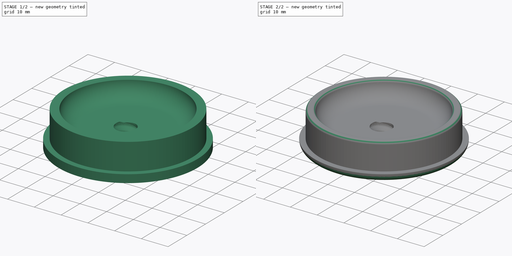
[diagram: build sequence overview — one tinted view per stage of 2, left to right]
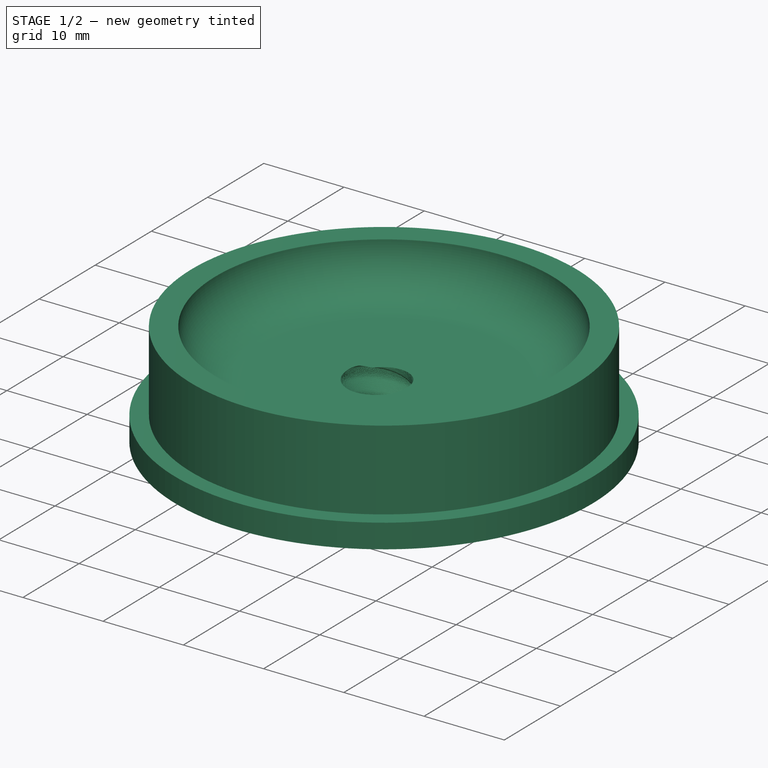
[diagram: stage 1 of 2 — iso view after this stage's code; geometry added in this stage tinted green]
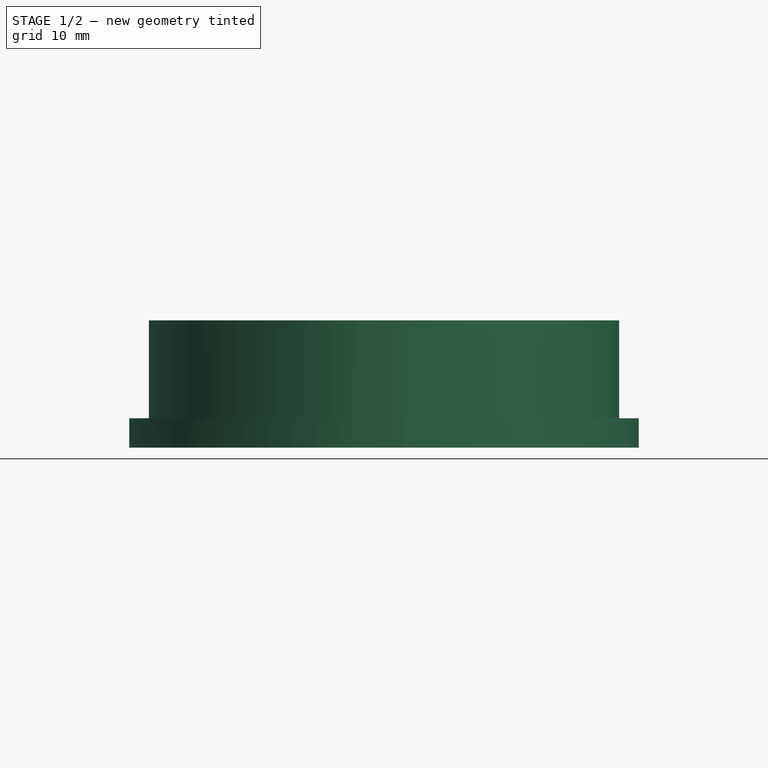
[diagram: stage 1 of 2 — front view after this stage's code; geometry added in this stage tinted green]
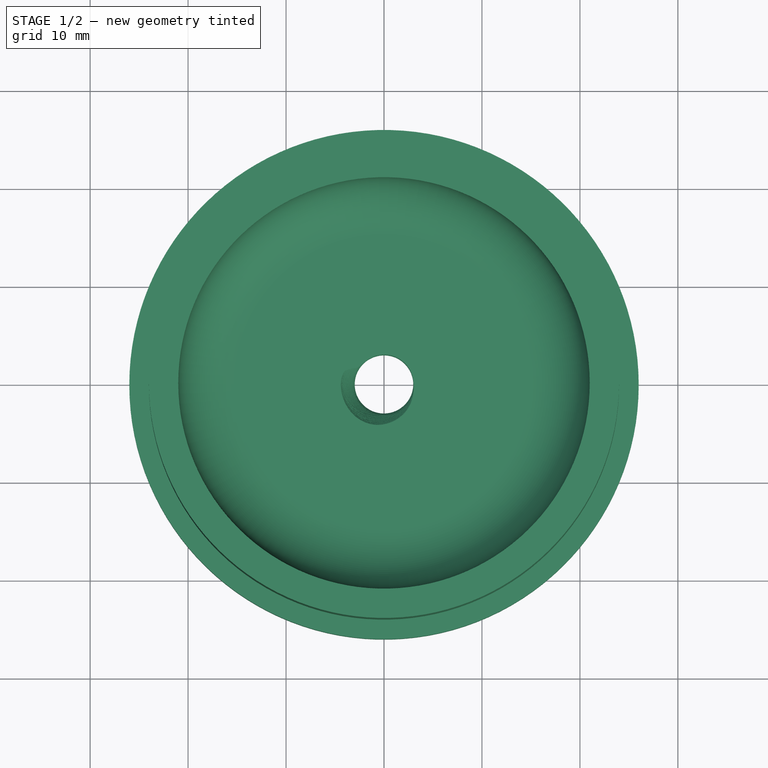
[diagram: stage 1 of 2 — top view after this stage's code; geometry added in this stage tinted green]
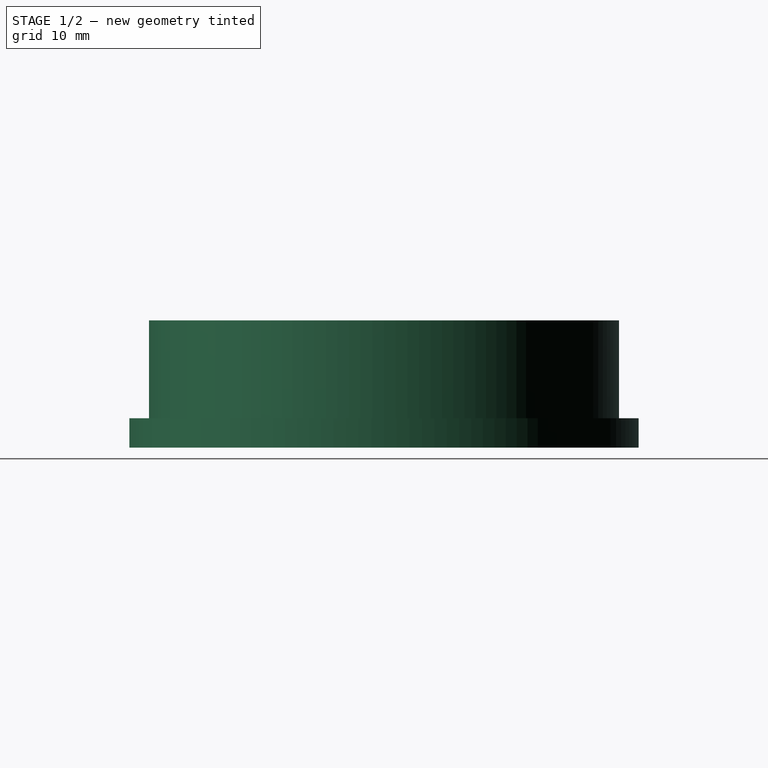
[diagram: stage 1 of 2 — right view after this stage's code; geometry added in this stage tinted green]
FCSTD DOCUMENT  (FreeCAD 0.20R29177 +426 (Git))
Label: fartbag_top
License: All rights reserved
LicenseURL: http://en.wikipedia.org/wiki/All_rights_reserved
objects: PartDesign::Fillet×2, Sketcher::SketchObject×1, PartDesign::Revolution×1, Part::Part2DObjectPython×1, Part::Helix×1, PartDesign::SubtractivePipe×1, PartDesign::Body×1
note: 12 computed .brp shape members not serialized (recipe doc carries the construction recipe); baked Part::Feature solids carry a one-line shape summary decoded from their .brp

FEATURE [Sketcher::SketchObject] Sketch
  FullyConstrained = true
  MapMode = 5
  Placement = pos=(0,0,0) rot=(1,0,0;1.5708rad)
  Support = -> [XZ_Plane]
  sketch-geometry (12):
    g0: LineSegment StartX=26 StartY=0 StartZ=0 EndX=26 EndY=3 EndZ=0
    g1: LineSegment StartX=26 StartY=3 StartZ=0 EndX=24 EndY=3 EndZ=0
    g2: LineSegment StartX=24 StartY=3 StartZ=0 EndX=24 EndY=13 EndZ=0
    g3: LineSegment StartX=24 StartY=13 StartZ=0 EndX=1 EndY=13 EndZ=0
    g4: LineSegment StartX=26 StartY=0 StartZ=0 EndX=1 EndY=0 EndZ=0
    g5: LineSegment StartX=1 StartY=13 StartZ=0 EndX=1 EndY=0 EndZ=0
    g6: LineSegment StartX=11 StartY=0 StartZ=0 EndX=26 EndY=0 EndZ=0
    g7: LineSegment StartX=1 StartY=7 StartZ=0 EndX=1 EndY=2 EndZ=0
    g8: LineSegment StartX=24 StartY=13 StartZ=0 EndX=21 EndY=13 EndZ=0
    g9: ArcOfCircle CenterX=15 CenterY=13 CenterZ=0 NormalX=0 NormalY=0 NormalZ=1 AngleXU=0 Radius=6 StartAngle=4.71239 EndAngle=6.28319
    g10: LineSegment StartX=1 StartY=7 StartZ=0 EndX=15 EndY=7 EndZ=0
    g11: LineSegment StartX=1 StartY=2 StartZ=0 EndX=11 EndY=0 EndZ=0
  constraints (36):
    c: PointOnObject(g0,g-1)
    c: Vertical(g0)
    c: Coincident(g1,g0)
    c: Horizontal(g1)
    c: Coincident(g2,g1)
    c: Vertical(g2)
    c: Coincident(g3,g2)
    c: Horizontal(g3)
    c: Horizontal(g4)
    c: Coincident(g5,g3)
    c: Coincident(g4,g5)
    c: Vertical(g5)
    c: DistanceX(g-1,g2) = 24
    c: Coincident(g4,g0)
    c: DistanceY(g0,g0) = 3
    c: DistanceY(g2,g2) = 10
    c: DistanceX(g-1,g0) = 26
    c: DistanceX(g-1,g4) = 1
    c: PointOnObject(g7,g5)
    c: PointOnObject(g6,g4)
    c: Coincident(g6,g0)
    c: DistanceY(g4,g7) = 2
    c: DistanceX(g4,g6) = 10
    c: PointOnObject(g7,g5)
    c: DistanceY(g7,g7) = 5
    c: Coincident(g8,g2)
    c: PointOnObject(g8,g3)
    c: DistanceX(g8,g8) = 3
    c: PointOnObject(g9,g3)
    c: Coincident(g9,g8)
    c: Coincident(g10,g7)
    c: Horizontal(g10)
    c: Tangent(g10,g9) = -1.5708
    c: Coincident(g11,g7)
    c: Coincident(g11,g6)
    c: Angle(g6,g11) = 2.9442
FEATURE [PartDesign::Revolution] Revolution
  Angle = 360
  Axis = (0,2e-16,1)
  Base = (0,0,0)
  Placement = pos=(0,0,0) rot=(1,0,0;1.5708rad)
  Profile = -> Sketch
  ReferenceAxis = -> Sketch [V_Axis]
  Reversed = true
FEATURE [Part::Part2DObjectPython] Bottle_M_ThreadProfile  # Draft 2D object (typed FeaturePython)
  Area = 41.1253
  AttachmentOffset = pos=(0,0,-0.5) rot=(0,0,1;0rad)
  Closed = true
  Continuity = C2
  Height = 6
  Helix = Helix
  Instructions = Expand this with the ... button to view instructions | Sweep this object along a helix of the same pitch to produce your thread. | It is recommended to make the helix in the ThreadProfile workbench. | If there is an active Body the ThreadProfile object will be put into it.,If not it can be dragged and dropped into the body later. | If there is an active Body when the helix is made there will be made a ShapeBinder for it | For internal threads you will need to cut the Sweep object out of a cylinder, or if using Part Design sweep it as a Subtractive Pipe. | Always use Frenet mode | I have provided some presets, but it is possible there could be some errors.  Double check for mission critical applications. | Also, the tolerances might be different from what you wish to have.  I believe the internal minor diameters are all minimum and the external are all maximum.
  InternalOrExternal = 0
  MakeFace = true
  MapMode = 11
  MinorDiameter = 6
  Parameterization = 1
  Pitch = 5
  Placement = pos=(0,3e-16,1.5) rot=(0,0,1;1.5708rad)
  Points = (120) [(2.99622,0.157244,0),(2.98787,0.314478,0),(2.97704,0.472183,0),(2.96507,0.631149,0),(2.9524,0.792246,0),(2.94182,0.957278,0),(2.94093,1.13064,0),+113 more]
  Presets = 0
  Quality = 6
  Support = -> [Revolution]
  ThreadCount = 1.2
  Variants = 0
  Version = 1.85
  external2S_data = [-0.00461051,-0.00886426,-0.0128148,-0.0165028,-0.0199596,-0.0232105,-0.0262759,-0.0291725,-0.0319145,-0.0345137,-0.0369805,-0.0393235,-0.0415505,-0.0436681,-0.0456823,-0.0475981,-0.0494204,-0.0511532,-0.0528003,-0.0543649,-0.0558502,+698 more]
  external3S_data = [-0.00677828,-0.0128149,-0.0182584,-0.0232106,-0.0277444,-0.0319145,-0.0357632,-0.0393236,-0.0426227,-0.0456823,-0.0485208,-0.0511533,-0.0535928,-0.0558503,-0.0579353,-0.059856,-0.0616195,-0.0632319,-0.0646984,-0.0660239,-0.0672123,+698 more]
  external45_data = [-0.00137363,-0.00271738,-0.00403219,-0.00531893,-0.00657844,-0.00781148,-0.00901878,-0.010201,-0.0113589,-0.012493,-0.0136039,-0.0146921,-0.0157583,-0.0168028,-0.0178261,-0.0188288,-0.0198112,-0.0207738,-0.0217169,-0.0226409,-0.0235462,+698 more]
  external_data = [6.8683e-05,0.000137366,0.000212133,0.000297079,0.000434727,0.000654671,0.000874565,0.00109436,0.00135915,0.00172112,0.00208281,0.0024438,0.00285056,0.00336131,0.0038717,0.00438141,0.0049559,0.00562874,0.00630075,0.00697193,0.00775661,+698 more]
  internal2S_data = [0,0,0,0,0,0,0,0,0,0,0,0,0,0,0,0,0,0,0,0,0,0,0,0,0,0,0,0,0,0,0,0,0,0,0,0,0,0,0,0,0,0,0,0,0,0,0,0,0,0,0,0,0,0,0,0,0,0,0,0,0,0,0,0,0,0,0,0,0,0,0,0,0,0,0,0,0,0,0,0,0,0,0,0,0,0,0,0,0,0,0.00481128,0.00962256,0.0144338,0.0192451,0.0240564,+624 more]
  internal3S_data = [0,0,0,0,0,0,0,0,0,0,0,0,0,0,0,0,0,0,0,0,0,0,0,0,0,0,0,0,0,0,0,0,0,0,0,0,0,0,0,0,0,0,0,0,0,0,0,0,0,0,0,0,0,0,0,0,0,0,0,0,0.00721688,0.0144338,0.0216506,0.0288675,0.0360844,0.0433013,0.0505181,0.057735,0.0649519,0.0721688,0.0793857,0.0866025,+647 more]
  internal45_data = [0,0,0,0,0,0,0,0,0,0,0,0,0,0,0,0,0,0,0,0,0,0,0,0,0,0,0,0,0,0,0,0,0,0,0,0,0,0,0,0,0,0,0,0,0,0,0,0,0,0,0,0,0,0,0,0,0,0,0,0,0,0,0,0,0,0,0,0,0,0,0,0,0,0,0,0,0,0,0,0,0,0,0,0,0,0,0,0,0,0,0,0,0,0,0,0,0,0,0,0,0,0,0,0,0,0,0,0,0,0,0,0,0,0,0,0,0,0,0,0,+599 more]
  internal_data = [6.8683e-05,0.000137366,0.000212133,0.000297079,0.000434727,0.000654671,0.000874565,0.00109436,0.00135915,0.00172112,0.00208281,0.0024438,0.00285056,0.00336131,0.0038717,0.00438141,0.0049559,0.00562874,0.00630075,0.00697193,0.00775661,+698 more]
  preset_names = Bottle presets | 13-SP415(M) 2.1166666666666667 | 15-SP415(M) 2.1166666666666667 | 18-SP400(M) 3.175 | 20-SP400(M) 3.175 | 22-SP400(M) 3.175 | 24-SP400(M) 3.175 | 28-SP400(M) 4.233333333333333 | 30-SP400(M) 4.233333333333333 | 33-SP400(M) 4.233333333333333 | 35-SP400(M) 4.233333333333333 | 38-SP400(M) 4.233333333333333 | 40-SP400(M) 4.233333333333333 | 43-SP400(M) 4.233333333333333 | 45-SP400(M) 4.233333333333333 | 48-SP400(M) 4.233333333333333 | 51-SP400(M) 4.233333333333333 | 53-SP400(M) 4.233333333333333 | 58-SP400(M) 4.233333333333333 | 60-SP400(M) 4.233333333333333 | 63-SP400(M) 4.233333333333333 | 66-SP400(M) 4.233333333333333 | 70-SP400(M) 4.233333333333333 | 75-SP400(M) 4.233333333333333 | 77-SP400(M) 4.233333333333333 | 83-SP400(M) 5.08 | 89-SP400(M) 5.08 | 100-SP400(M) 5.08 | 110-SP400(M) 5.08 | 120-SP400(M) 5.08
  presets_data = [0,0,0,2.11667,11.53,11.78,2.11667,13.23,13.48,3.175,15.75,16,3.175,17.75,18,3.175,19.76,20.01,3.175,21.74,21.99,4.23333,25.25,25.5,4.23333,26.23,26.48,4.23333,29.74,29.99,4.23333,32.25,32.5,4.23333,35.1,35.35,4.23333,37.75,38,4.23333,39.62,+49 more]
FEATURE [Part::Helix] Helix
  Angle = 0
  AttacherType = Attacher::AttachEngine3D
  AttachmentOffset = pos=(0,0,-0.5) rot=(0,0,1;0rad)
  Height = 6
  LocalCoord = 0
  MapMode = 11
  Pitch = 5
  Placement = pos=(0,3e-16,1.5) rot=(0,0,1;1.5708rad)
  Radius = 1
  SegmentLength = 0
  Style = 0
  Support = -> [Revolution]
  expr: AttachmentOffset = Bottle_M_ThreadProfile.AttachmentOffset
  expr: Height = Bottle_M_ThreadProfile.ThreadCount * Bottle_M_ThreadProfile.Pitch
  expr: MapMode = Bottle_M_ThreadProfile.MapMode
  expr: MapPathParameter = Bottle_M_ThreadProfile.MapPathParameter
  expr: MapReversed = Bottle_M_ThreadProfile.MapReversed
  expr: Pitch = Bottle_M_ThreadProfile.Pitch
  expr: Support = Bottle_M_ThreadProfile.Support
FEATURE [PartDesign::SubtractivePipe] SubtractivePipe
  AuxilleryCurvelinear = true
  AuxillerySpineTangent = false
  BaseFeature = -> Revolution
  Binormal = (0,0,0)
  Mode = 2
  Placement = pos=(0,0,0) rot=(1,0,0;1.5708rad)
  Profile = -> Bottle_M_ThreadProfile
  Spine = -> Helix
  SpineTangent = false
  Transformation = 0
  Transition = 0
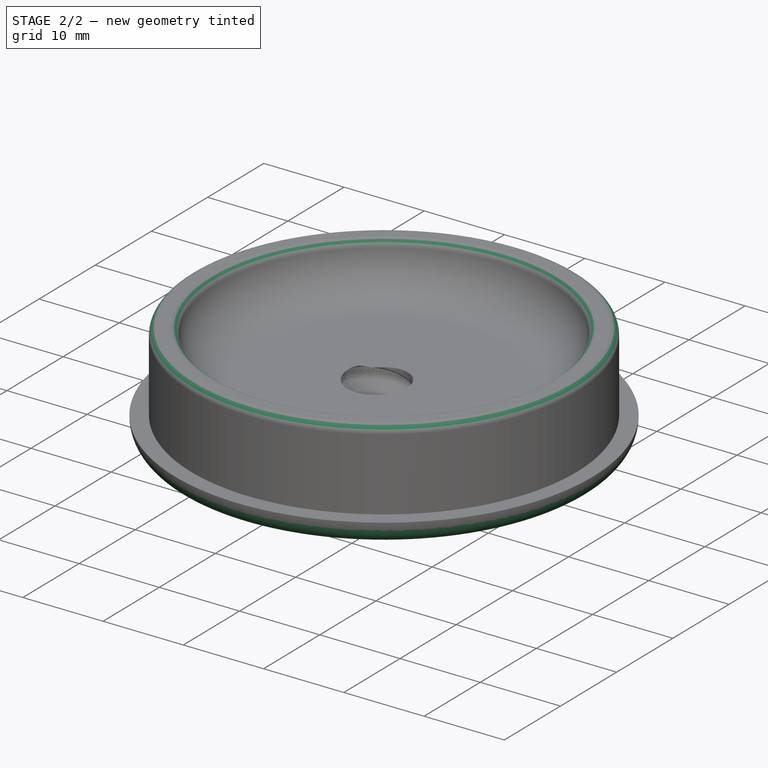
[diagram: stage 2 of 2 — iso view after this stage's code; geometry added in this stage tinted green]
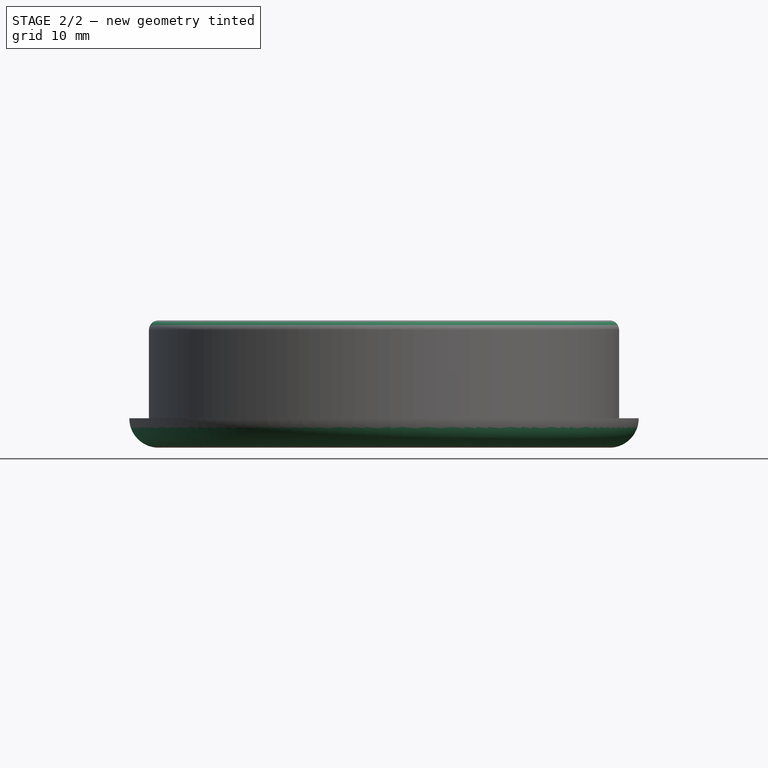
[diagram: stage 2 of 2 — front view after this stage's code; geometry added in this stage tinted green]
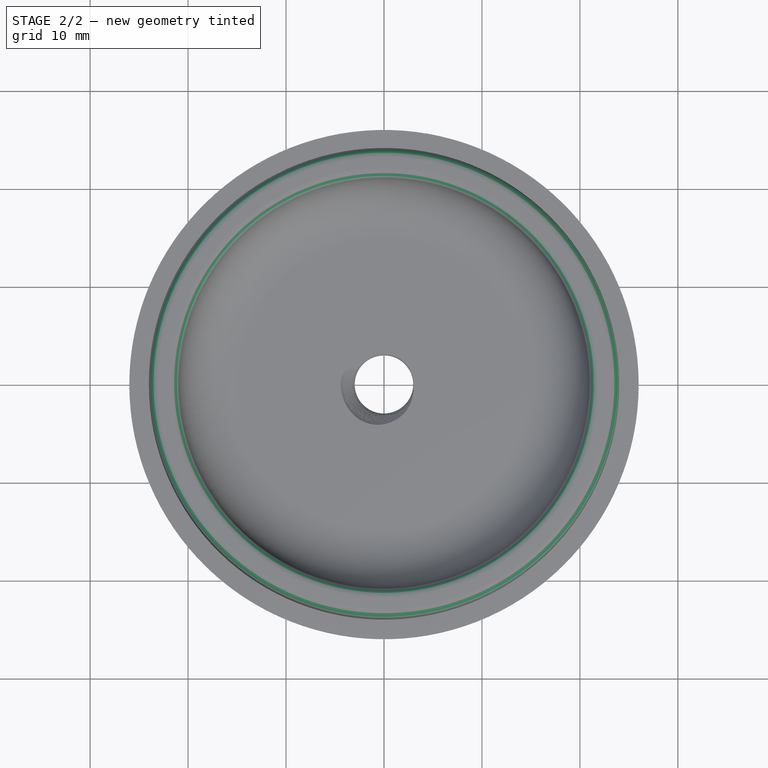
[diagram: stage 2 of 2 — top view after this stage's code; geometry added in this stage tinted green]
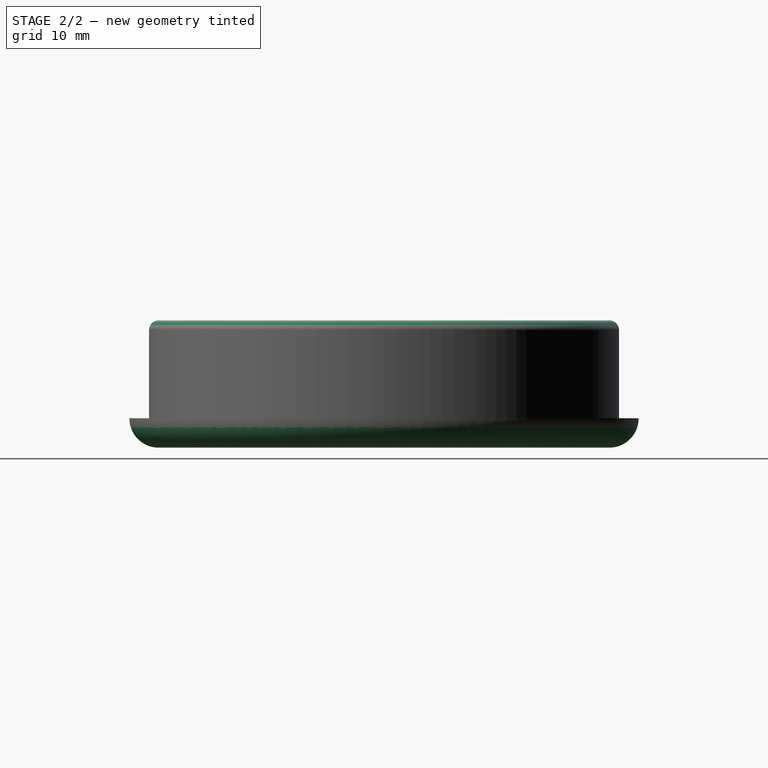
[diagram: stage 2 of 2 — right view after this stage's code; geometry added in this stage tinted green]
FEATURE [PartDesign::Fillet] Fillet
  Base = -> SubtractivePipe [Edge16]
  BaseFeature = -> SubtractivePipe
  Placement = pos=(0,0,0) rot=(1,0,0;1.5708rad)
  Radius = 2.99
  SupportTransform = false
  UseAllEdges = false
FEATURE [PartDesign::Fillet] Fillet001
  Base = -> Fillet [Edge17,Edge19]
  BaseFeature = -> Fillet
  Placement = pos=(0,0,0) rot=(1,0,0;1.5708rad)
  Radius = 1
  SupportTransform = false
  UseAllEdges = false
FEATURE [PartDesign::Body] Body
  Group = -> [Sketch,Revolution,Bottle_M_ThreadProfile,Helix,SubtractivePipe,Fillet,Fillet001]
  Origin = -> Origin
  Tip = -> Fillet001
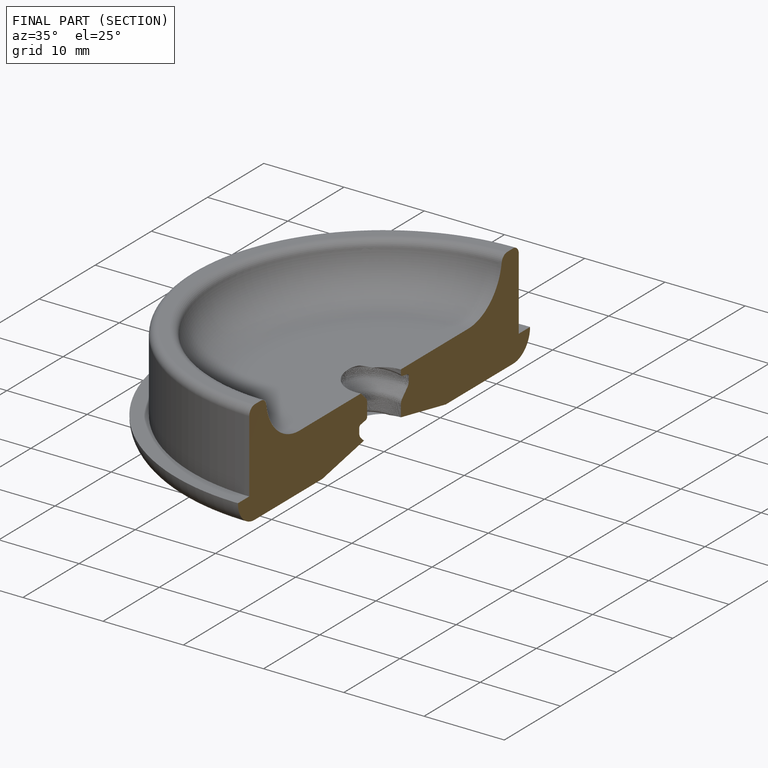
[diagram: finished part — half-section view (interior)]
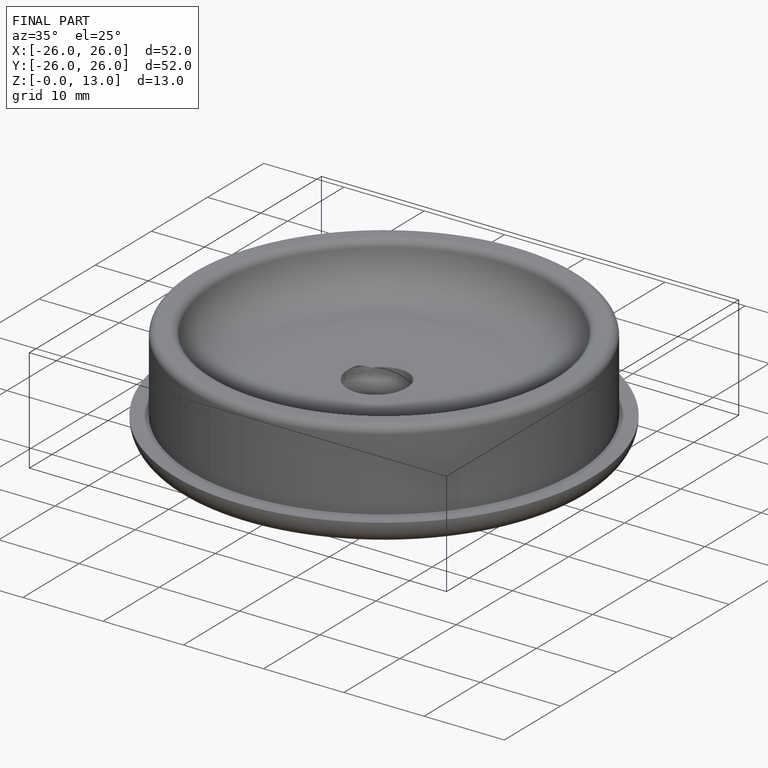
[diagram: finished part — iso view with bounding-box wireframe]
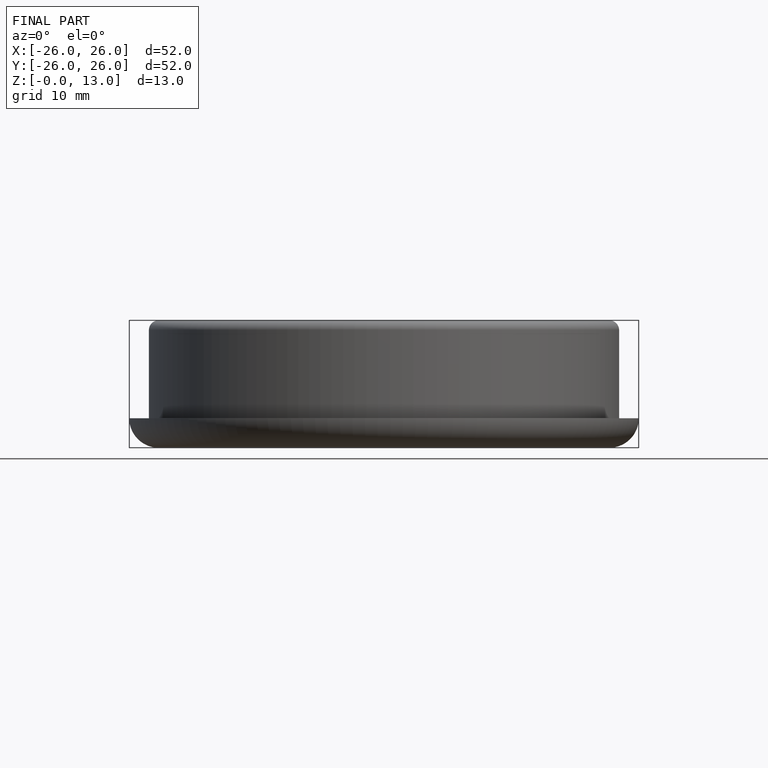
[diagram: finished part — front view with bounding-box wireframe]
